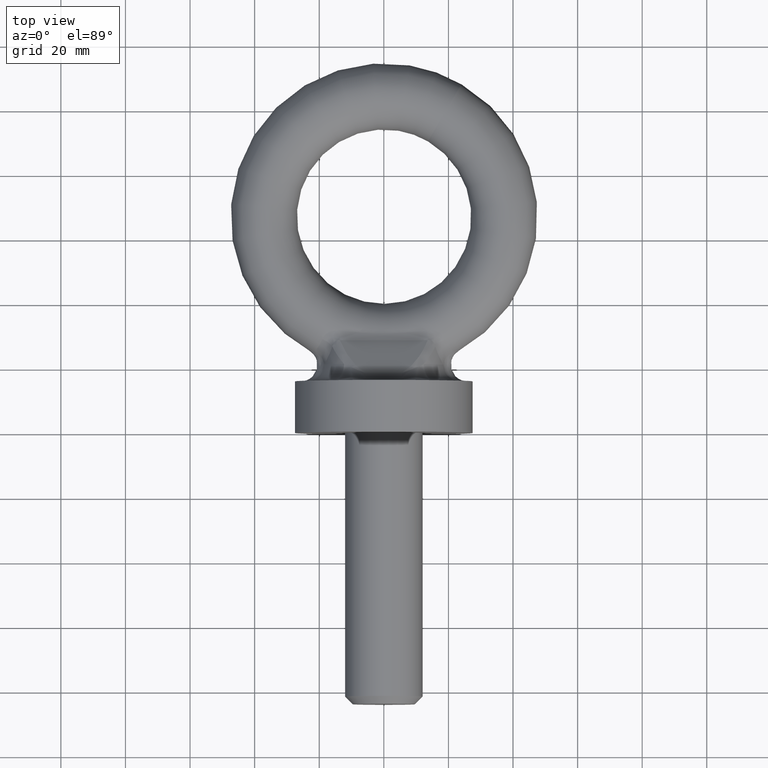
[diagram: clean part render]
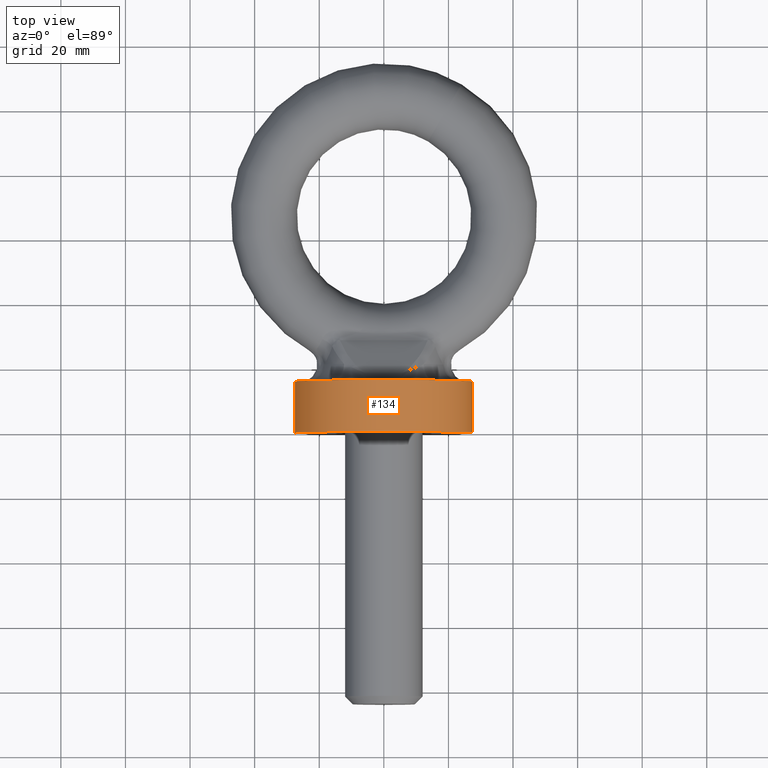
[diagram: same view with one face highlighted and labeled with its STEP entity id]
A machine part, top view. The second image highlights one B-rep face of the part: STEP entity #134.
In plain terms, the highlighted cylindrical surface (bore or boss wall) has radius 27.5 mm, axis along (-0, 1, 0).
Its self-contained STEP definition (entity closure, byte-faithful):
#84=FACE_BOUND('',#237,.T.);
#85=FACE_BOUND('',#238,.T.);
#108=CYLINDRICAL_SURFACE('',#676,27.5);
#134=ADVANCED_FACE('',(#84,#85),#108,.T.);
#237=EDGE_LOOP('',(#358));
#238=EDGE_LOOP('',(#359));
#279=CIRCLE('',#673,27.5);
#280=CIRCLE('',#675,27.5);
#358=ORIENTED_EDGE('',*,*,#566,.F.);
#359=ORIENTED_EDGE('',*,*,#565,.T.);
#506=VERTEX_POINT('',#1138);
#507=VERTEX_POINT('',#1141);
#565=EDGE_CURVE('',#506,#506,#279,.T.);
#566=EDGE_CURVE('',#507,#507,#280,.T.);
#673=AXIS2_PLACEMENT_3D('',#1137,#776,#777);
#675=AXIS2_PLACEMENT_3D('',#1140,#780,#781);
#676=AXIS2_PLACEMENT_3D('',#1142,#782,#783);
#776=DIRECTION('',(-2.41421590200679E-18,1.,0.));
#777=DIRECTION('',(-1.,-2.41421590200679E-18,0.));
#780=DIRECTION('',(-2.41421590200679E-18,1.,0.));
#781=DIRECTION('',(-1.,0.,0.));
#782=DIRECTION('',(-2.41421590200679E-18,1.,0.));
#783=DIRECTION('',(-1.,0.,0.));
#1137=CARTESIAN_POINT('',(7.18229230847018E-17,0.,0.));
#1138=CARTESIAN_POINT('',(-27.5,-6.63909373051866E-17,0.));
#1140=CARTESIAN_POINT('',(3.31954686525932E-17,16.,0.));
#1141=CARTESIAN_POINT('',(-27.5,16.,0.));
#1142=CARTESIAN_POINT('',(2.74617058853272E-16,-84.,0.));